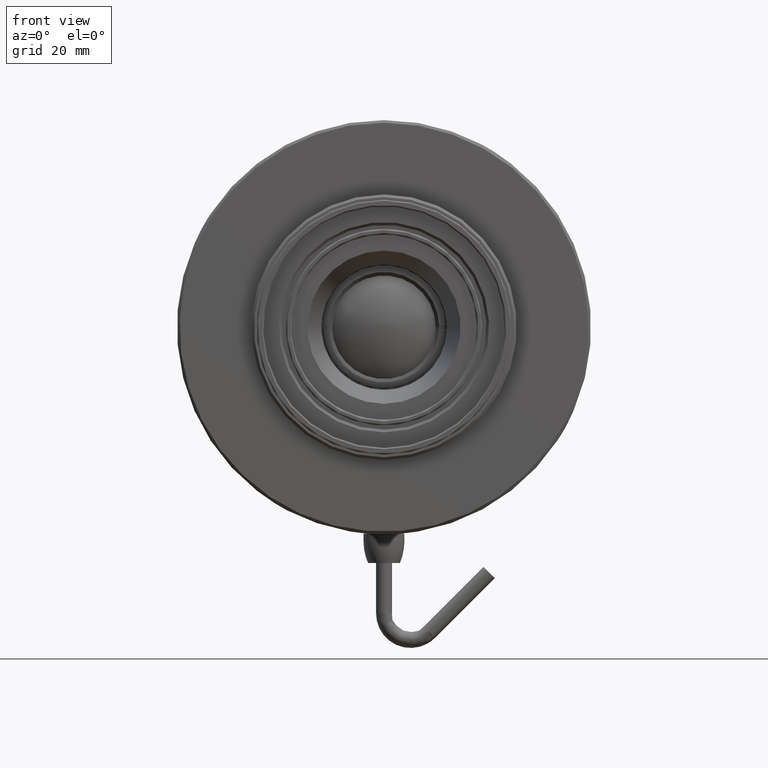
[diagram: clean part render]
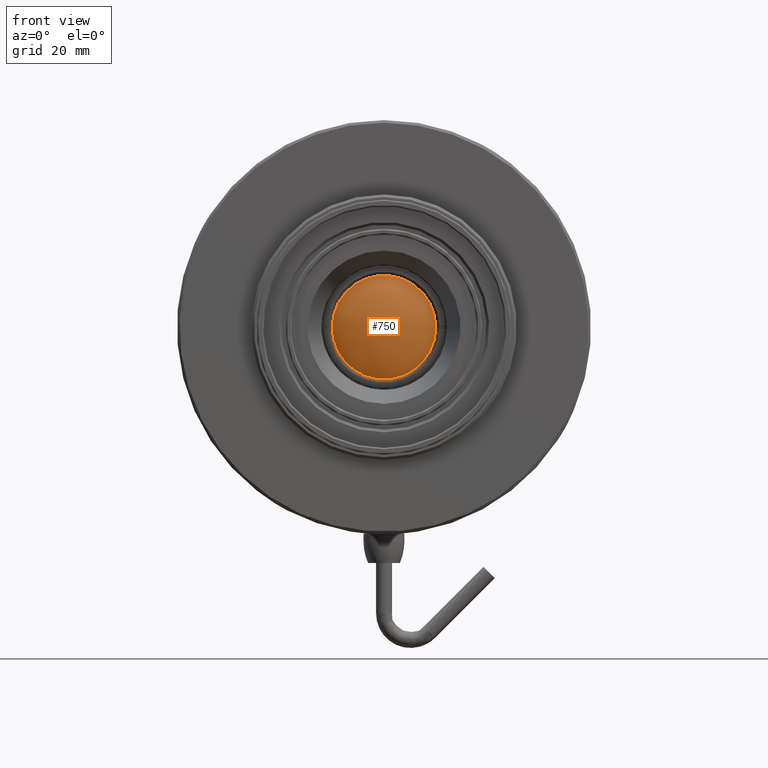
[diagram: same view with one face highlighted and labeled with its STEP entity id]
A machine part, front view. The second image highlights one B-rep face of the part: STEP entity #750.
In plain terms, the highlighted face is a freeform B-spline surface patch.
Its self-contained STEP definition (entity closure, byte-faithful):
#750 = ADVANCED_FACE ( 'NONE', ( #8282 ), #11072, .T. ) ;
#849 = CARTESIAN_POINT ( 'NONE',  ( -10.53926687336645962, -46.19295506755027247, 3.752261586871826982 ) ) ;
#957 = CARTESIAN_POINT ( 'NONE',  ( 10.51616927832509241, -46.22606208118307336, -3.677550739201398855 ) ) ;
#1014 = CARTESIAN_POINT ( 'NONE',  ( -2.482443504755776548E-18, -45.36674374531210674, 5.204170427930421283E-15 ) ) ;
#1765 = CARTESIAN_POINT ( 'NONE',  ( -10.54743606070162087, -46.20513334879290568, -3.677550739201398855 ) ) ;
#1873 = CARTESIAN_POINT ( 'NONE',  ( 3.080394748339539746, -46.24181989975512863, -9.862492413014916082 ) ) ;
#1947 = AXIS2_PLACEMENT_3D ( 'NONE', #1014, #11197, #3753 ) ;
#2762 = EDGE_LOOP ( 'NONE', ( #8992 ) ) ;
#2794 = CARTESIAN_POINT ( 'NONE',  ( -3.976309091223851233, -50.61304331139731971, -3.677550739201398411 ) ) ;
#3637 = CARTESIAN_POINT ( 'NONE',  ( -3.103507125097121122, -46.19414978150726370, 9.920903848798458213 ) ) ;
#3753 = DIRECTION ( 'NONE',  ( 1.000000000000000000, 0.000000000000000000, 0.000000000000000000 ) ) ;
#3810 = CARTESIAN_POINT ( 'NONE',  ( -8.254020353910254570, -42.78620557327719354, -9.862492413014916082 ) ) ;
#5619 = CIRCLE ( 'NONE', #1947, 9.758723994919124678 ) ;
#5890 = EDGE_CURVE ( 'NONE', #8598, #8598, #5619, .T. ) ;
#6352 = CARTESIAN_POINT ( 'NONE',  ( -8.232268220330606567, -42.75377840647443151, 9.920903848798458213 ) ) ;
#6473 = CARTESIAN_POINT ( 'NONE',  ( -3.111707526219106956, -46.23566744630043246, -9.862492413014916082 ) ) ;
#6587 = CARTESIAN_POINT ( 'NONE',  ( -3.973229365148074343, -50.59745102109753390, 3.752261586871827870 ) ) ;
#7378 = CARTESIAN_POINT ( 'NONE',  ( 8.207864513360599190, -42.77011327094346171, 9.920903848798458213 ) ) ;
#8282 = FACE_OUTER_BOUND ( 'NONE', #2762, .T. ) ;
#8348 = CARTESIAN_POINT ( 'NONE',  ( 8.229552164991938312, -42.80258359938095225, -9.862492413014916082 ) ) ;
#8598 = VERTEX_POINT ( 'NONE', #9273 ) ;
#8992 = ORIENTED_EDGE ( 'NONE', *, *, #5890, .T. ) ;
#9158 = CARTESIAN_POINT ( 'NONE',  ( 3.936295920864841147, -50.62090525099131355, -3.677550739201398411 ) ) ;
#9273 = CARTESIAN_POINT ( 'NONE',  ( 9.758723994919124678, -45.36674374531210674, 5.204170427930421283E-15 ) ) ;
#10058 = CARTESIAN_POINT ( 'NONE',  ( 10.50802430770014873, -46.21386759024410651, 3.752261586871826982 ) ) ;
#11072 =( BOUNDED_SURFACE ( )  B_SPLINE_SURFACE ( 3, 3, ( 
 ( #6352, #3637, #12014, #7378 ),
 ( #849, #6587, #11098, #10058 ),
 ( #1765, #2794, #9158, #957 ),
 ( #3810, #6473, #1873, #8348 ) ),
 .UNSPECIFIED., .F., .F., .F. ) 
 B_SPLINE_SURFACE_WITH_KNOTS ( ( 4, 4 ),
 ( 4, 4 ),
 ( 0.000000000000000000, 1.000000000000000000 ),
 ( 0.000000000000000000, 1.000000000000000000 ),
 .UNSPECIFIED. ) 
 GEOMETRIC_REPRESENTATION_ITEM ( )  RATIONAL_B_SPLINE_SURFACE ( (
 ( 1.000000000000000000, 0.8873438986210916424, 0.8873438986210916424, 1.000000000000000000),
 ( 0.8875682360727594755, 0.7875782588890478664, 0.7875782588890478664, 0.8875682360727594755),
 ( 0.8875682360727594755, 0.7875782588890478664, 0.7875782588890478664, 0.8875682360727594755),
 ( 1.000000000000000000, 0.8873438986210916424, 0.8873438986210916424, 1.000000000000000000) ) ) 
 REPRESENTATION_ITEM ( '' )  SURFACE ( )  );
#11098 = CARTESIAN_POINT ( 'NONE',  ( 3.933247185741055585, -50.60530687147164741, 3.752261586871827870 ) ) ;
#11197 = DIRECTION ( 'NONE',  ( 3.552624537877615195E-16, -1.000000000000000000, 0.000000000000000000 ) ) ;
#12014 = CARTESIAN_POINT ( 'NONE',  ( 3.072276866971320075, -46.20028602116754257, 9.920903848798458213 ) ) ;